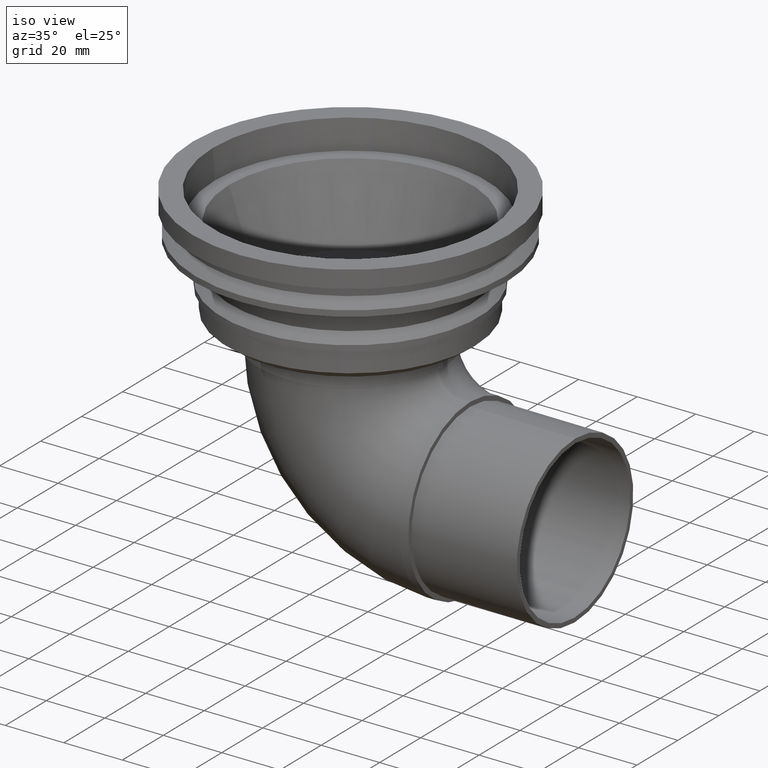
[diagram: clean part render]
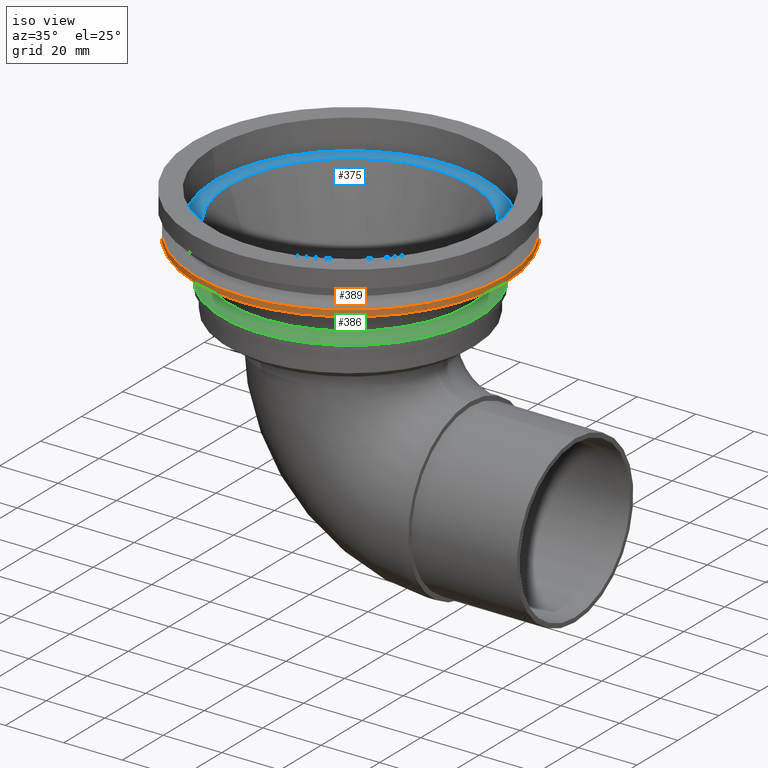
[diagram: same view with three faces highlighted in distinct colors, each labeled with its STEP entity id]
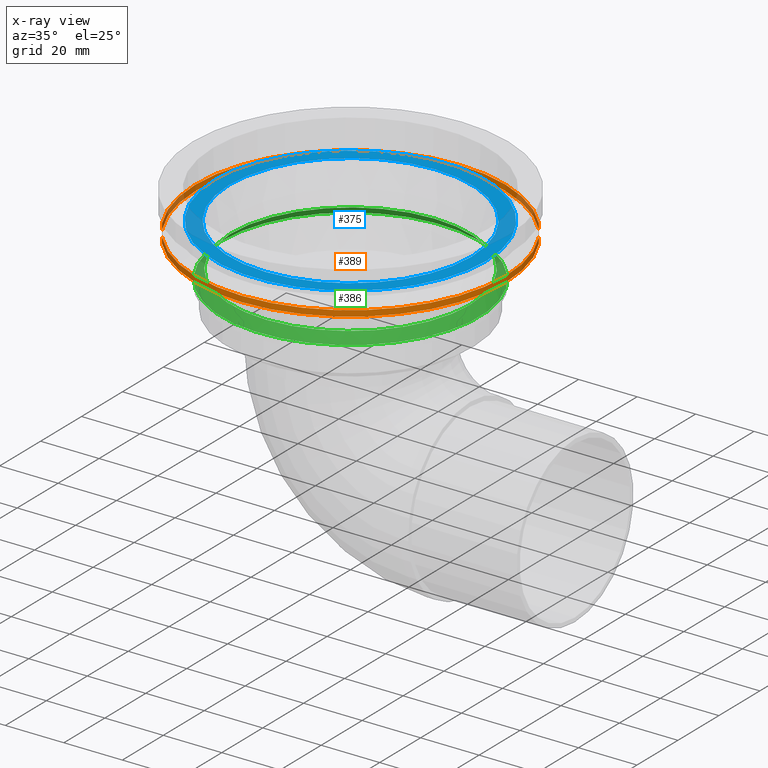
[diagram: x-ray of the same camera — body ghosted, the three highlighted faces saturated]
A machine part, iso view with three faces highlighted in distinct colors.
The next image is the same camera in x-ray (body ghosted, the three faces saturated) — at least one of them is partly hidden behind the body in this view.
Their STEP definitions:

[orange] entity #389 — the highlighted cylindrical surface (bore or boss wall) has radius 53 mm, axis along (0, 0, -1).
#34=CYLINDRICAL_SURFACE('',#458,53.);
#80=ORIENTED_EDGE('',*,*,#133,.T.);
#81=ORIENTED_EDGE('',*,*,#132,.F.);
#132=EDGE_CURVE('',#167,#167,#202,.T.);
#133=EDGE_CURVE('',#168,#168,#203,.T.);
#167=VERTEX_POINT('',#691);
#168=VERTEX_POINT('',#694);
#202=CIRCLE('',#457,53.);
#203=CIRCLE('',#459,53.);
#255=EDGE_LOOP('',(#80));
#256=EDGE_LOOP('',(#81));
#325=FACE_BOUND('',#255,.T.);
#326=FACE_BOUND('',#256,.T.);
#389=ADVANCED_FACE('',(#325,#326),#34,.T.);
#457=AXIS2_PLACEMENT_3D('',#690,#568,#569);
#458=AXIS2_PLACEMENT_3D('',#692,#570,#571);
#459=AXIS2_PLACEMENT_3D('',#693,#572,#573);
#568=DIRECTION('',(0.,0.,-1.));
#569=DIRECTION('',(-1.,0.,0.));
#570=DIRECTION('',(0.,0.,-1.));
#571=DIRECTION('',(-1.,0.,0.));
#572=DIRECTION('',(0.,0.,-1.));
#573=DIRECTION('',(-1.,0.,0.));
#690=CARTESIAN_POINT('',(0.,0.,-15.));
#691=CARTESIAN_POINT('',(-53.,0.,-15.));
#692=CARTESIAN_POINT('',(0.,0.,-5.));
#693=CARTESIAN_POINT('',(0.,0.,-13.));
#694=CARTESIAN_POINT('',(-53.,0.,-13.));

[blue] entity #375 — the highlighted planar face has unit normal (0, 0, 1).
#52=ORIENTED_EDGE('',*,*,#119,.T.);
#53=ORIENTED_EDGE('',*,*,#118,.F.);
#118=EDGE_CURVE('',#153,#153,#188,.T.);
#119=EDGE_CURVE('',#154,#154,#189,.T.);
#153=VERTEX_POINT('',#649);
#154=VERTEX_POINT('',#652);
#188=CIRCLE('',#429,46.5);
#189=CIRCLE('',#431,41.5);
#227=EDGE_LOOP('',(#52));
#228=EDGE_LOOP('',(#53));
#297=FACE_BOUND('',#227,.T.);
#298=FACE_BOUND('',#228,.T.);
#360=PLANE('',#430);
#375=ADVANCED_FACE('',(#297,#298),#360,.T.);
#429=AXIS2_PLACEMENT_3D('',#648,#512,#513);
#430=AXIS2_PLACEMENT_3D('',#650,#514,#515);
#431=AXIS2_PLACEMENT_3D('',#651,#516,#517);
#512=DIRECTION('',(0.,0.,-1.));
#513=DIRECTION('',(-1.,0.,0.));
#514=DIRECTION('',(0.,0.,1.));
#515=DIRECTION('',(1.,0.,0.));
#516=DIRECTION('',(0.,0.,-1.));
#517=DIRECTION('',(-1.,0.,0.));
#648=CARTESIAN_POINT('',(0.,0.,-10.));
#649=CARTESIAN_POINT('',(-46.5,0.,-10.));
#650=CARTESIAN_POINT('',(-46.5,0.,-10.));
#651=CARTESIAN_POINT('',(0.,0.,-10.));
#652=CARTESIAN_POINT('',(-41.5,0.,-10.));

[green] entity #386 — the highlighted conical surface has half-angle 45 deg.
#27=CONICAL_SURFACE('',#452,44.,0.785398163397446);
#74=ORIENTED_EDGE('',*,*,#130,.T.);
#75=ORIENTED_EDGE('',*,*,#129,.F.);
#129=EDGE_CURVE('',#164,#164,#199,.T.);
#130=EDGE_CURVE('',#165,#165,#200,.T.);
#164=VERTEX_POINT('',#682);
#165=VERTEX_POINT('',#685);
#199=CIRCLE('',#451,44.);
#200=CIRCLE('',#453,41.);
#249=EDGE_LOOP('',(#74));
#250=EDGE_LOOP('',(#75));
#319=FACE_BOUND('',#249,.T.);
#320=FACE_BOUND('',#250,.T.);
#386=ADVANCED_FACE('',(#319,#320),#27,.T.);
#451=AXIS2_PLACEMENT_3D('',#681,#556,#557);
#452=AXIS2_PLACEMENT_3D('',#683,#558,#559);
#453=AXIS2_PLACEMENT_3D('',#684,#560,#561);
#556=DIRECTION('',(0.,0.,-1.));
#557=DIRECTION('',(-1.,0.,0.));
#558=DIRECTION('',(0.,0.,-1.));
#559=DIRECTION('',(-1.,0.,0.));
#560=DIRECTION('',(0.,0.,-1.));
#561=DIRECTION('',(-1.,0.,0.));
#681=CARTESIAN_POINT('',(0.,0.,-28.));
#682=CARTESIAN_POINT('',(-44.,0.,-28.));
#683=CARTESIAN_POINT('',(0.,0.,-28.));
#684=CARTESIAN_POINT('',(0.,0.,-25.));
#685=CARTESIAN_POINT('',(-41.,0.,-25.));